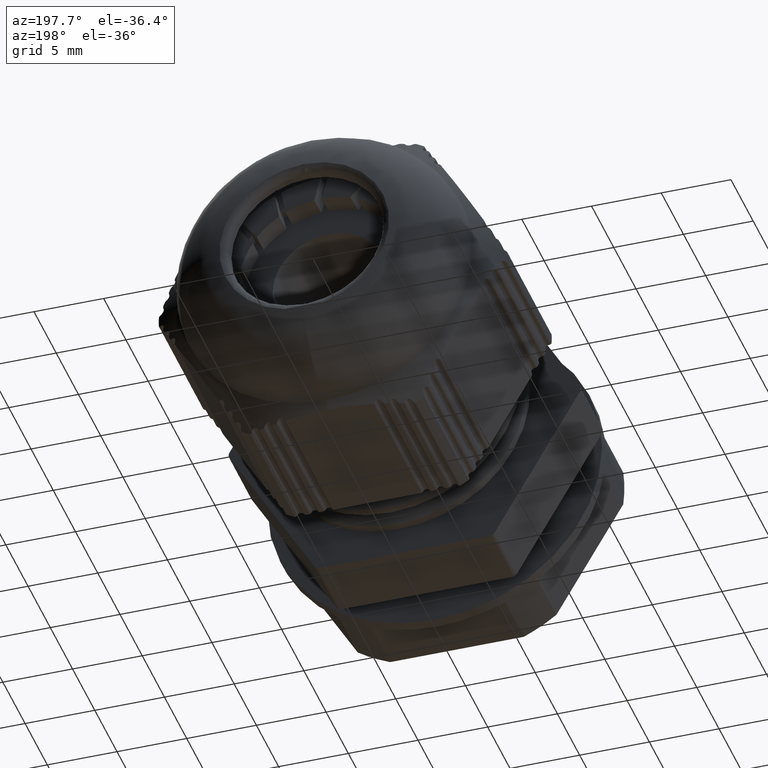
[diagram: clean part render]
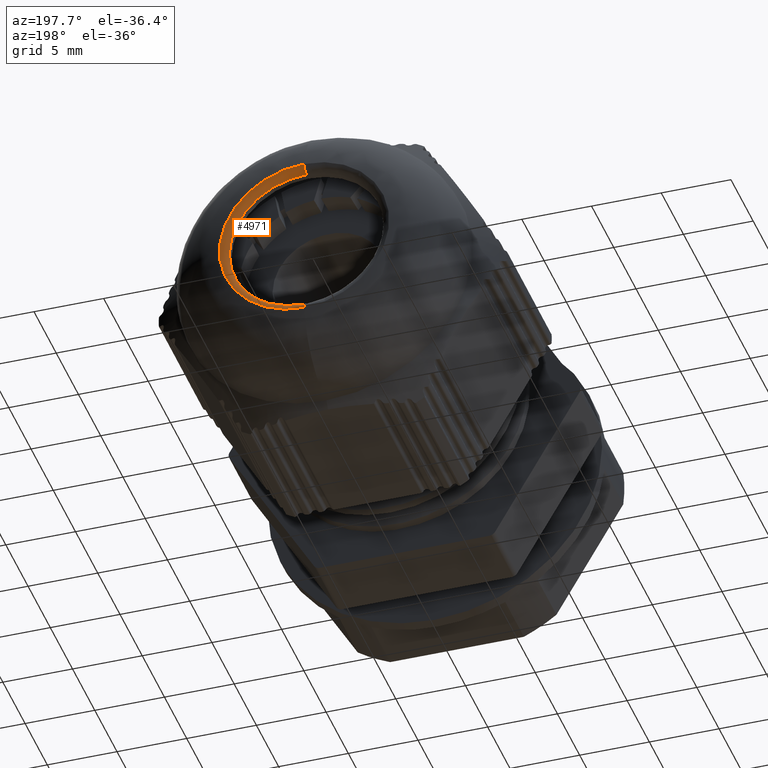
[diagram: same view with one face highlighted and labeled with its STEP entity id]
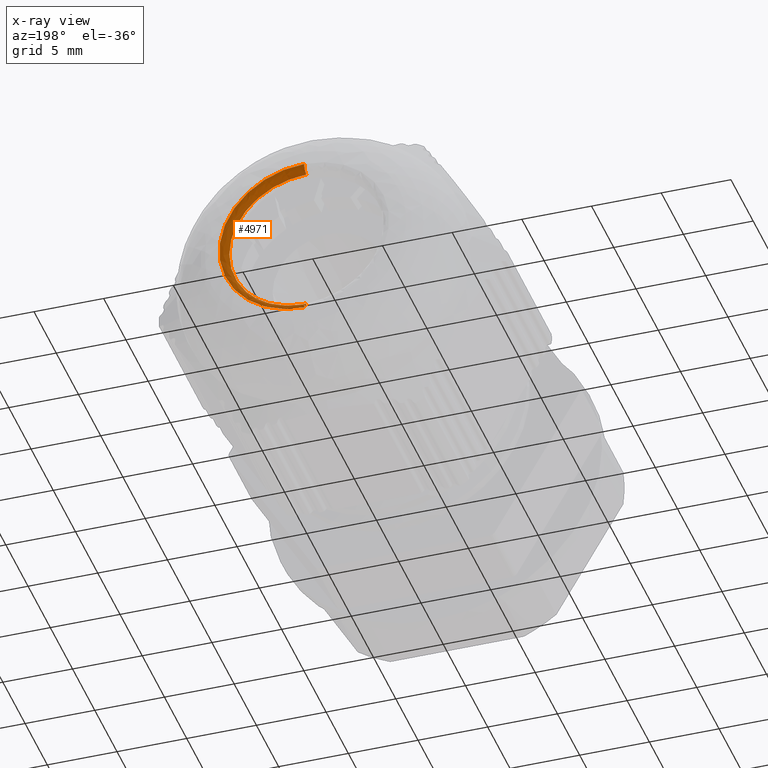
[diagram: x-ray of the same camera — body ghosted, the highlighted face saturated]
A machine part, auxiliary view. The second image highlights one B-rep face of the part: STEP entity #4971.
The next image is the same camera in x-ray: the body ghosted, the highlighted face saturated — about 0% of this face is hidden behind the body in this view.
In plain terms, the highlighted face is a freeform B-spline surface patch.
Its self-contained STEP definition (entity closure, byte-faithful):
#427 = CIRCLE ( 'NONE', #496, 0.4999999999999995600 ) ;
#482 = CIRCLE ( 'NONE', #494, 5.530855325337777000 ) ;
#494 = AXIS2_PLACEMENT_3D ( 'NONE', #2384, #2387, #2391 ) ;
#496 = AXIS2_PLACEMENT_3D ( 'NONE', #1643, #1652, #1651 ) ;
#497 = AXIS2_PLACEMENT_3D ( 'NONE', #1655, #1656, #1658 ) ;
#525 = CIRCLE ( 'NONE', #497, 0.4999999999999995600 ) ;
#1643 = CARTESIAN_POINT ( 'NONE',  ( -1.734723475976807100E-015, 20.75295749393714600, 6.030855325337776100 ) ) ;
#1651 = DIRECTION ( 'NONE',  ( 0.0000000000000000000, 0.0000000000000000000, 1.000000000000000000 ) ) ;
#1652 = DIRECTION ( 'NONE',  ( 1.000000000000000000, 0.0000000000000000000, 0.0000000000000000000 ) ) ;
#1655 = CARTESIAN_POINT ( 'NONE',  ( -9.961567089472394800E-016, 20.75295749393714600, -6.030855325337777900 ) ) ;
#1656 = DIRECTION ( 'NONE',  ( -1.000000000000000000, 0.0000000000000000000, -1.224646799147353200E-016 ) ) ;
#1658 = DIRECTION ( 'NONE',  ( 1.224646799147351500E-016, 0.0000000000000000000, -1.000000000000000000 ) ) ;
#1768 = CARTESIAN_POINT ( 'NONE',  ( -1.188850178448437600E-015, 20.75295749393714600, -1.124580754473133700E-015 ) ) ;
#1780 = DIRECTION ( 'NONE',  ( 7.194423238088309400E-017, -1.000000000000000000, 5.756171098494016500E-017 ) ) ;
#1816 = DIRECTION ( 'NONE',  ( -1.000000000000000000, 0.0000000000000000000, 0.0000000000000000000 ) ) ;
#1921 = DIRECTION ( 'NONE',  ( 0.0000000000000000000, 1.000000000000000000, 0.0000000000000000000 ) ) ;
#1926 = DIRECTION ( 'NONE',  ( 0.0000000000000000000, 0.0000000000000000000, 1.000000000000000000 ) ) ;
#1945 = CARTESIAN_POINT ( 'NONE',  ( -1.734723475976807100E-015, 21.24946620140077900, -1.301042606982605300E-015 ) ) ;
#2384 = CARTESIAN_POINT ( 'NONE',  ( -1.188850178448437600E-015, 20.75295749393714600, -1.124580754473133700E-015 ) ) ;
#2387 = DIRECTION ( 'NONE',  ( 7.194423238088309400E-017, -1.000000000000000000, 5.756171098494016500E-017 ) ) ;
#2391 = DIRECTION ( 'NONE',  ( -1.000000000000000000, 0.0000000000000000000, 0.0000000000000000000 ) ) ;
#3057 = CARTESIAN_POINT ( 'NONE',  ( -1.734723475976807100E-015, 21.24946620140077900, 6.089839250374958500 ) ) ;
#3063 = CARTESIAN_POINT ( 'NONE',  ( -3.653058573723550800E-016, 21.24946620140077900, -6.089839250374962100 ) ) ;
#3075 = CARTESIAN_POINT ( 'NONE',  ( -1.023161155176026700E-015, 20.75295749393714600, -5.530855325337777900 ) ) ;
#3078 = CARTESIAN_POINT ( 'NONE',  ( -1.734723475976807100E-015, 20.75295749393714600, 5.530855325337776100 ) ) ;
#3507 = CIRCLE ( 'NONE', #3508, 5.530855325337777000 ) ;
#3508 = AXIS2_PLACEMENT_3D ( 'NONE', #1768, #1780, #1816 ) ;
#3530 = CIRCLE ( 'NONE', #3540, 6.089839250374960300 ) ;
#3540 = AXIS2_PLACEMENT_3D ( 'NONE', #1945, #1921, #1926 ) ;
#3806 = CARTESIAN_POINT ( 'NONE',  ( 5.530855325337776100, 20.75295749393714600, -4.337602411284509100E-016 ) ) ;
#4127 = CARTESIAN_POINT ( 'NONE',  ( 11.06171065067555400, 21.07408902631014400, 5.530855325337777000 ) ) ;
#4128 = CARTESIAN_POINT ( 'NONE',  ( 11.54190009249257000, 21.28734939786591000, -5.770950046246286800 ) ) ;
#4129 = CARTESIAN_POINT ( 'NONE',  ( -1.734723475976807300E-015, 21.07408902631015100, 5.530855325337776100 ) ) ;
#4130 = CARTESIAN_POINT ( 'NONE',  ( -1.027985925759328800E-015, 21.28734939786591300, -5.770950046246288600 ) ) ;
#4131 = CARTESIAN_POINT ( 'NONE',  ( -1.734723475976807100E-015, 21.24946620140077900, 6.089839250374960300 ) ) ;
#4132 = CARTESIAN_POINT ( 'NONE',  ( -9.889332614474460500E-016, 21.24946620140077900, -6.089839250374963000 ) ) ;
#4133 = CARTESIAN_POINT ( 'NONE',  ( 12.17967850074991700, 21.24946620140077900, 6.089839250374960300 ) ) ;
#4137 = CARTESIAN_POINT ( 'NONE',  ( 12.17967850074991700, 21.24946620140077900, -6.089839250374960300 ) ) ;
#4138 = FACE_OUTER_BOUND ( 'NONE', #9426, .T. ) ;
#4139 = CARTESIAN_POINT ( 'NONE',  ( -1.734723475976807100E-015, 20.75295749393714600, 5.530855325337776100 ) ) ;
#4140 = CARTESIAN_POINT ( 'NONE',  ( 11.06171065067555000, 20.75295749393714900, -5.530855325337777000 ) ) ;
#4142 = CARTESIAN_POINT ( 'NONE',  ( 11.06171065067555000, 20.75295749393714900, 5.530855325337776100 ) ) ;
#4143 = CARTESIAN_POINT ( 'NONE',  ( -1.057389048904607100E-015, 20.75295749393714600, -5.530855325337778800 ) ) ;
#4144 = CARTESIAN_POINT ( 'NONE',  ( 11.06171065067555400, 21.07408902631014400, -5.530855325337777900 ) ) ;
#4145 = CARTESIAN_POINT ( 'NONE',  ( -1.057389048904606900E-015, 21.07408902631015100, -5.530855325337779700 ) ) ;
#4146 = CARTESIAN_POINT ( 'NONE',  ( -1.734723475976807300E-015, 21.28734939786591300, 5.770950046246285900 ) ) ;
#4147 = CARTESIAN_POINT ( 'NONE',  ( 11.54190009249257000, 21.28734939786591000, 5.770950046246285900 ) ) ;
#4479 = EDGE_CURVE ( 'NONE', #11613, #14131, #3507, .T. ) ;
#4509 = EDGE_CURVE ( 'NONE', #14129, #12433, #3530, .T. ) ;
#4696 =( BOUNDED_SURFACE ( )  B_SPLINE_SURFACE ( 3, 3, ( 
 ( #4139, #4142, #4140, #4143 ),
 ( #4129, #4127, #4144, #4145 ),
 ( #4146, #4147, #4128, #4130 ),
 ( #4131, #4133, #4137, #4132 ) ),
 .UNSPECIFIED., .F., .F., .T. ) 
 B_SPLINE_SURFACE_WITH_KNOTS ( ( 4, 4 ),
 ( 4, 4 ),
 ( 0.0000000000000000000, 1.000000000000000000 ),
 ( 0.0000000000000000000, 1.000000000000000000 ),
 .UNSPECIFIED. ) 
 GEOMETRIC_REPRESENTATION_ITEM ( )  RATIONAL_B_SPLINE_SURFACE ( (
 ( 1.000000000000000000, 0.3333333333333334300, 0.3333333333333334300, 1.000000000000000000),
 ( 0.7760602744922355800, 0.2586867581640786000, 0.2586867581640786000, 0.7760602744922355800),
 ( 0.7760602744922355800, 0.2586867581640786000, 0.2586867581640786000, 0.7760602744922355800),
 ( 1.000000000000000000, 0.3333333333333334300, 0.3333333333333334300, 1.000000000000000000) ) ) 
 REPRESENTATION_ITEM ( '' )  SURFACE ( )  );
#4971 = ADVANCED_FACE ( 'NONE', ( #4138 ), #4696, .T. ) ;
#8923 = ORIENTED_EDGE ( 'NONE', *, *, #4509, .T. ) ;
#8954 = ORIENTED_EDGE ( 'NONE', *, *, #10922, .T. ) ;
#8955 = ORIENTED_EDGE ( 'NONE', *, *, #10984, .T. ) ;
#8965 = ORIENTED_EDGE ( 'NONE', *, *, #10924, .F. ) ;
#8969 = ORIENTED_EDGE ( 'NONE', *, *, #4479, .T. ) ;
#9426 = EDGE_LOOP ( 'NONE', ( #8965, #8955, #8969, #8954, #8923 ) ) ;
#10922 = EDGE_CURVE ( 'NONE', #14131, #14129, #427, .T. ) ;
#10924 = EDGE_CURVE ( 'NONE', #12424, #12433, #525, .T. ) ;
#10984 = EDGE_CURVE ( 'NONE', #12424, #11613, #482, .T. ) ;
#11613 = VERTEX_POINT ( 'NONE', #3806 ) ;
#12424 = VERTEX_POINT ( 'NONE', #3075 ) ;
#12433 = VERTEX_POINT ( 'NONE', #3063 ) ;
#14129 = VERTEX_POINT ( 'NONE', #3057 ) ;
#14131 = VERTEX_POINT ( 'NONE', #3078 ) ;